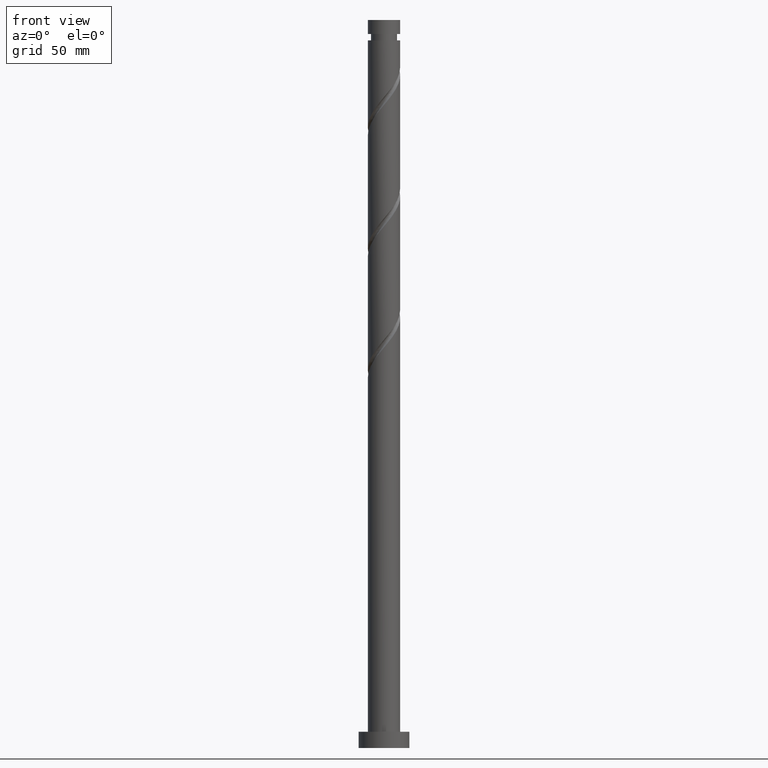
[diagram: clean part render]
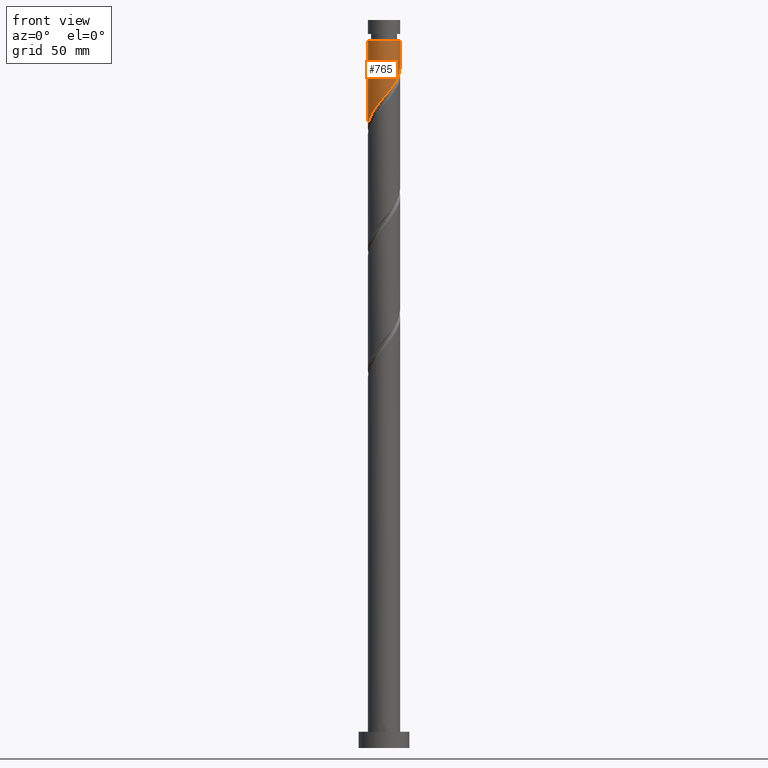
[diagram: same view with one face highlighted and labeled with its STEP entity id]
A machine part, front view. The second image highlights one B-rep face of the part: STEP entity #765.
In plain terms, the highlighted cylindrical surface (edge-blend (fillet) strip) has radius 7 mm, axis along (-0, -0, -1).
Its self-contained STEP definition (entity closure, byte-faithful):
#97 = CARTESIAN_POINT ( 'NONE',  ( -0.6200460442345108181, -7.016951423583473790, 280.8743950615575500 ) ) ;
#112 = VERTEX_POINT ( 'NONE', #1294 ) ;
#115 = CARTESIAN_POINT ( 'NONE',  ( 6.860000000000001208, -1.392982411949272636, 293.0618950615576068 ) ) ;
#119 = EDGE_CURVE ( 'NONE', #112, #1853, #1633, .T. ) ;
#145 = ORIENTED_EDGE ( 'NONE', *, *, #654, .T. ) ;
#253 =( BOUNDED_CURVE ( )  B_SPLINE_CURVE ( 2, ( #1036, #582, #115, #590, #1884, #1315, #416, #1741, #1026, #1618, #1300, #271, #700, #399, #873, #97, #1329, #1183, #256, #856, #1457, #1307, #1892, #737, #488, #1796, #1685, #749, #341, #1494, #934 ),
 .UNSPECIFIED., .F., .T. ) 
 B_SPLINE_CURVE_WITH_KNOTS ( ( 3, 2, 2, 2, 2, 2, 2, 2, 2, 2, 2, 2, 2, 2, 2, 3 ),
 ( 0.3045303401299221946, 0.3125000000000000000, 0.3214285714285714524, 0.3303571428571428492, 0.3392857142857143016, 0.3482142857142856984, 0.3571428571428571508, 0.3660714285714285476, 0.3750000000000000000, 0.3839285714285714524, 0.3928571428571428492, 0.4017857142857143016, 0.4107142857142856984, 0.4196428571428571508, 0.4285714285714285476, 0.4295303401299221391 ),
 .UNSPECIFIED. ) 
 CURVE ( )  GEOMETRIC_REPRESENTATION_ITEM ( )  RATIONAL_B_SPLINE_CURVE ( ( 0.9079949616361931986, 0.9039886423360566914, 0.9090909090909231605, 0.9033747362665982550, 0.9090909090909231605, 0.9033747362665982550, 0.9090909090909231605, 0.9033747362665982550, 0.9090909090909231605, 0.9033747362665982550, 0.9090909090909231605, 0.9033747362665982550, 0.9090909090909231605, 0.9033747362665982550, 0.9090909090909231605, 0.9033747362665982550, 0.9090909090909231605, 0.9033747362665982550, 0.9090909090909231605, 0.9033747362665982550, 0.9090909090909231605, 0.9033747362665982550, 0.9090909090909231605, 0.9033747362665982550, 0.9090909090909231605, 0.9033747362665982550, 0.9090909090909231605, 0.9033747362665982550, 0.9090909090909231605, 0.9084770030214649461, 0.9079949616361931986 ) ) 
 REPRESENTATION_ITEM ( '' )  );
#256 = CARTESIAN_POINT ( 'NONE',  ( -2.884551041528022886, -6.378037730275639916, 278.0618950615576068 ) ) ;
#271 = CARTESIAN_POINT ( 'NONE',  ( 2.485898938349330400, -6.591082676329788725, 284.6243950615576637 ) ) ;
#339 = VERTEX_POINT ( 'NONE', #1092 ) ;
#341 = CARTESIAN_POINT ( 'NONE',  ( -6.997973224858983876, -0.1684361723526123789, 268.6868950615576637 ) ) ;
#399 = CARTESIAN_POINT ( 'NONE',  ( 0.9569183889397343545, -6.978995026134492186, 282.7493950615576637 ) ) ;
#416 = CARTESIAN_POINT ( 'NONE',  ( 5.576254016389050605, -4.231476237048367395, 289.3118950615576068 ) ) ;
#422 = ORIENTED_EDGE ( 'NONE', *, *, #119, .T. ) ;
#488 = CARTESIAN_POINT ( 'NONE',  ( -6.231874297749640412, -3.188062536564721494, 272.4368950615576068 ) ) ;
#514 = DIRECTION ( 'NONE',  ( -0.000000000000000000, -0.000000000000000000, -1.000000000000000000 ) ) ;
#567 = ORIENTED_EDGE ( 'NONE', *, *, #911, .F. ) ;
#569 = FACE_OUTER_BOUND ( 'NONE', #1345, .T. ) ;
#582 = CARTESIAN_POINT ( 'NONE',  ( 7.000000000000000000, -0.7035264706814667868, 293.8981410605002225 ) ) ;
#590 = CARTESIAN_POINT ( 'NONE',  ( 6.703048576416528626, -2.165918779664034677, 292.1243950615576068 ) ) ;
#631 = AXIS2_PLACEMENT_3D ( 'NONE', #1267, #514, #1881 ) ;
#654 = EDGE_CURVE ( 'NONE', #1853, #339, #1262, .T. ) ;
#700 = CARTESIAN_POINT ( 'NONE',  ( 1.721408663644532266, -6.785038851232141788, 283.6868950615576068 ) ) ;
#737 = CARTESIAN_POINT ( 'NONE',  ( -5.872665919169487658, -3.890226134780113476, 273.3743950615576068 ) ) ;
#749 = CARTESIAN_POINT ( 'NONE',  ( -6.978995026134492186, -0.9569183889397347986, 269.6243950615576637 ) ) ;
#765 = ADVANCED_FACE ( 'NONE', ( #569 ), #1193, .T. ) ;
#856 = CARTESIAN_POINT ( 'NONE',  ( -3.603183303392009762, -6.053026884134752095, 277.1243950615576637 ) ) ;
#873 = CARTESIAN_POINT ( 'NONE',  ( 0.1684361723526119348, -6.997973224858983876, 281.8118950615576637 ) ) ;
#911 = EDGE_CURVE ( 'NONE', #1113, #339, #253, .T. ) ;
#934 = CARTESIAN_POINT ( 'NONE',  ( -7.000000000000002665, 1.835870143147737993E-15, 268.4864121394636527 ) ) ;
#947 = LINE ( 'NONE', #1543, #1548 ) ;
#1026 = CARTESIAN_POINT ( 'NONE',  ( 4.494853641711733516, -5.366217544937103234, 287.4368950615576637 ) ) ;
#1036 = CARTESIAN_POINT ( 'NONE',  ( 7.000000000000002665, -2.507529951616423279E-15, 294.7364121394636527 ) ) ;
#1088 = CARTESIAN_POINT ( 'NONE',  ( 7.000000000000002665, -2.507529951616422885E-15, 294.7364121394636527 ) ) ;
#1092 = CARTESIAN_POINT ( 'NONE',  ( -7.000000000000002665, 1.835870143147737993E-15, 268.4864121394636527 ) ) ;
#1113 = VERTEX_POINT ( 'NONE', #1088 ) ;
#1120 = CARTESIAN_POINT ( 'NONE',  ( -7.000000000000000888, 0.000000000000000000, 315.0000000000000000 ) ) ;
#1174 = DIRECTION ( 'NONE',  ( -0.000000000000000000, -0.000000000000000000, -1.000000000000000000 ) ) ;
#1183 = CARTESIAN_POINT ( 'NONE',  ( -2.165918779664034677, -6.703048576416528626, 278.9993950615576068 ) ) ;
#1193 = CYLINDRICAL_SURFACE ( 'NONE', #1326, 7.000000000000000888 ) ;
#1262 = LINE ( 'NONE', #1120, #1269 ) ;
#1267 = CARTESIAN_POINT ( 'NONE',  ( 0.000000000000000000, 0.000000000000000000, 306.1868950615576068 ) ) ;
#1269 = VECTOR ( 'NONE', #1706, 1000.000000000000000 ) ;
#1294 = CARTESIAN_POINT ( 'NONE',  ( 6.999999999999976907, 8.572527594031458399E-16, 306.1868950615576068 ) ) ;
#1300 = CARTESIAN_POINT ( 'NONE',  ( 3.188062536564720606, -6.231874297749640412, 285.5618950615576637 ) ) ;
#1307 = CARTESIAN_POINT ( 'NONE',  ( -4.859769170704723251, -5.099481148643351780, 275.2493950615575500 ) ) ;
#1315 = CARTESIAN_POINT ( 'NONE',  ( 6.053026884134751207, -3.603183303392010206, 290.2493950615576068 ) ) ;
#1326 = AXIS2_PLACEMENT_3D ( 'NONE', #1339, #1174, #1920 ) ;
#1329 = CARTESIAN_POINT ( 'NONE',  ( -1.392982411949272192, -6.860000000000001208, 279.9368950615576068 ) ) ;
#1339 = CARTESIAN_POINT ( 'NONE',  ( 0.000000000000000000, 0.000000000000000000, 315.0000000000000000 ) ) ;
#1345 = EDGE_LOOP ( 'NONE', ( #1437, #422, #145, #567 ) ) ;
#1399 = DIRECTION ( 'NONE',  ( -0.000000000000000000, -0.000000000000000000, -1.000000000000000000 ) ) ;
#1437 = ORIENTED_EDGE ( 'NONE', *, *, #1467, .F. ) ;
#1457 = CARTESIAN_POINT ( 'NONE',  ( -4.231476237048366507, -5.576254016389052381, 276.1868950615576068 ) ) ;
#1467 = EDGE_CURVE ( 'NONE', #112, #1113, #947, .T. ) ;
#1494 = CARTESIAN_POINT ( 'NONE',  ( -7.000000000000002665, -0.08423028016472111634, 268.5867748276887710 ) ) ;
#1543 = CARTESIAN_POINT ( 'NONE',  ( 7.000000000000000888, 8.572527594031474176E-16, 315.0000000000000000 ) ) ;
#1548 = VECTOR ( 'NONE', #1399, 1000.000000000000000 ) ;
#1618 = CARTESIAN_POINT ( 'NONE',  ( 3.890226134780113476, -5.872665919169487658, 286.4993950615575500 ) ) ;
#1633 = CIRCLE ( 'NONE', #631, 6.999999999999976907 ) ;
#1685 = CARTESIAN_POINT ( 'NONE',  ( -6.785038851232141788, -1.721408663644533377, 270.5618950615576637 ) ) ;
#1706 = DIRECTION ( 'NONE',  ( -0.000000000000000000, -0.000000000000000000, -1.000000000000000000 ) ) ;
#1741 = CARTESIAN_POINT ( 'NONE',  ( 5.099481148643351780, -4.859769170704723251, 288.3743950615577205 ) ) ;
#1767 = CARTESIAN_POINT ( 'NONE',  ( -6.999999999999976907, 0.000000000000000000, 306.1868950615576068 ) ) ;
#1796 = CARTESIAN_POINT ( 'NONE',  ( -6.591082676329788725, -2.485898938349330400, 271.4993950615577205 ) ) ;
#1853 = VERTEX_POINT ( 'NONE', #1767 ) ;
#1881 = DIRECTION ( 'NONE',  ( -1.000000000000000000, 0.000000000000000000, 0.000000000000000000 ) ) ;
#1884 = CARTESIAN_POINT ( 'NONE',  ( 6.378037730275639916, -2.884551041528023330, 291.1868950615577205 ) ) ;
#1892 = CARTESIAN_POINT ( 'NONE',  ( -5.366217544937103234, -4.494853641711733516, 274.3118950615577205 ) ) ;
#1920 = DIRECTION ( 'NONE',  ( -1.000000000000000000, 0.000000000000000000, 0.000000000000000000 ) ) ;